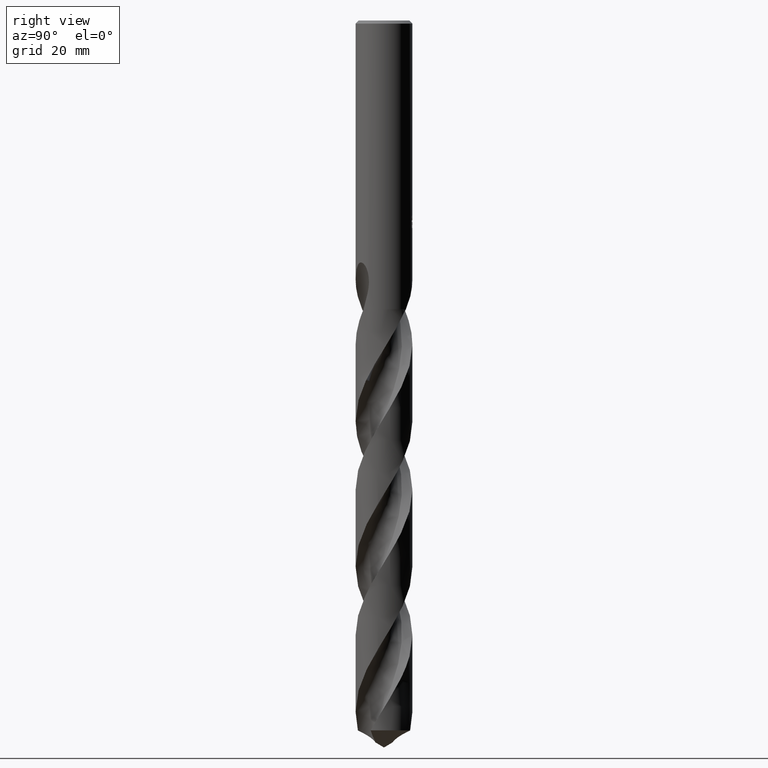
[diagram: clean part render]
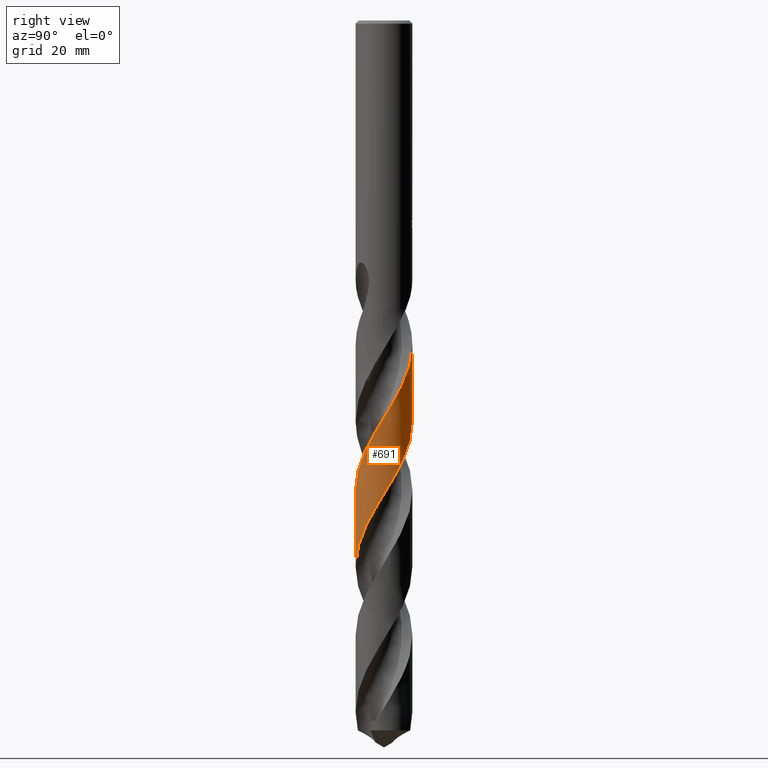
[diagram: same view with one face highlighted and labeled with its STEP entity id]
A machine part, right view. The second image highlights one B-rep face of the part: STEP entity #691.
In plain terms, the highlighted conical surface has half-angle 0 deg.
Its self-contained STEP definition (entity closure, byte-faithful):
#313=VERTEX_POINT('',#800);
#465=EDGE_CURVE('',#531,#313,#970,.T.);
#531=VERTEX_POINT('',#1042);
#543=EDGE_CURVE('',#647,#613,#1054,.T.);
#613=VERTEX_POINT('',#1129);
#625=EDGE_CURVE('',#647,#313,#1141,.T.);
#647=VERTEX_POINT('',#1163);
#691=ADVANCED_FACE('',(#1211),#1212,.T.);
#709=EDGE_CURVE('',#531,#613,#1232,.T.);
#800=CARTESIAN_POINT('',(7.98527233429181E-012,5.54992662607898,-78.2978399965336));
#970=LINE('',#4086,#4087);
#1042=CARTESIAN_POINT('',(3.26509822330006E-013,5.54990845892441,-63.3510636184465));
#1054=LINE('',#4652,#4653);
#1129=CARTESIAN_POINT('',(1.02480329572758E-013,-5.54994293024492,-91.7118681070603));
#1141=B_SPLINE_CURVE_WITH_KNOTS('',3,(#6389,#6390,#6391,#6392,#6393,#6394,#6395,#6396,#6397,#6398,#6399,#6400,#6401,#6402,#6403,#6404,#6405,#6406,#6407,#6408,#6409,#6410,#6411,#6412,#6413,#6414,#6415,#6416,#6417,#6418,#6419,#6420,#6421,#6422,#6423,#6424,#6425,#6426,#6427,#6428,#6429,#6430,#6431,#6432,#6433,#6434,#6435,#6436,#6437,#6438,#6439,#6440,#6441,#6442,#6443,#6444,#6445,#6446,#6447,#6448,#6449,#6450,#6451,#6452,#6453,#6454,#6455,#6456,#6457,#6458,#6459,#6460,#6461,#6462,#6463,#6464,#6465,#6466,#6467,#6468,#6469,#6470,#6471,#6472,#6473,#6474,#6475,#6476,#6477,#6478,#6479,#6480,#6481,#6482,#6483,#6484,#6485,#6486,#6487,#6488,#6489,#6490,#6491,#6492,#6493,#6494,#6495,#6496,#6497,#6498,#6499,#6500,#6501,#6502,#6503,#6504,#6505,#6506,#6507,#6508,#6509,#6510,#6511,#6512,#6513,#6514,#6515,#6516,#6517,#6518,#6519,#6520,#6521,#6522,#6523,#6524,#6525,#6526,#6527,#6528,#6529,#6530,#6531,#6532,#6533,#6534,#6535,#6536,#6537,#6538,#6539,#6540,#6541,#6542,#6543,#6544,#6545,#6546),.UNSPECIFIED.,.F.,.F.,(4,2,2,2,2,2,2,2,2,2,2,2,2,2,2,2,2,2,2,2,2,2,2,2,2,2,2,2,2,2,2,2,2,2,2,2,2,2,2,2,2,2,2,2,2,2,2,2,2,2,2,2,2,2,2,2,2,2,2,2,2,2,2,2,2,2,2,2,2,2,2,2,2,2,2,2,2,2,4),(0.0,1.46655868737656,3.41783290731923,5.26949046959095,5.74764628696772,7.95144570172864,9.54355369802347,11.1100185561849,12.6683297977426,14.2346658891406,15.793405792042,17.3595866141916,18.8742755995859,20.4399489714098,21.8692339213255,23.6874031627515,25.274196086025,27.2313110607265,27.9501409497025,29.3310392686889,30.0306007662757,31.6571620112534,33.4461055129922,34.5042760644231,36.0674687299325,37.4869222307285,39.0680116462478,39.7794021069182,40.4808167825242,41.8958329830743,42.6816166442228,44.2350344892799,45.6651994310543,47.1467608220412,48.5857734843821,49.9894940042185,51.4909340274777,52.2117138464143,53.4996941084221,55.4543609579214,56.4697179498838,57.932278954249,58.621262014019,59.3853137917778,60.7397031028553,61.5250086405784,63.0781470858341,64.5245192857018,65.9943866544358,67.5579108008403,69.0280307114055,70.5365061757088,71.9287085766405,73.5649313534265,74.2262717577189,75.2996262217071,76.7674338506758,77.455605137642,78.2118670554317,79.5873696145348,80.9319773874793,81.034744217811,82.6173234052096,84.0073804595535,84.2089754714259,87.1540691966913,87.287678610934,89.4047305821116,90.9724425704837,92.5239225540245,93.8689583896368,94.6101652206603,95.5988085917648,96.2995189479404,96.8108620683024,97.1636793984897,97.6055704357064,98.6709879472098,100.259175919108),.UNSPECIFIED.);
#1163=CARTESIAN_POINT('',(-1.29828638759846E-014,-5.54996109565772,-106.65721145902));
#1211=FACE_OUTER_BOUND('',#7995,.T.);
#1212=CONICAL_SURFACE('',#7996,5.54995,1.21545637188869E-006);
#1232=B_SPLINE_CURVE_WITH_KNOTS('',3,(#8030,#8031,#8032,#8033,#8034,#8035,#8036,#8037,#8038,#8039,#8040,#8041,#8042,#8043,#8044,#8045,#8046,#8047,#8048,#8049,#8050,#8051,#8052,#8053,#8054,#8055,#8056,#8057,#8058,#8059,#8060,#8061,#8062,#8063,#8064,#8065,#8066,#8067,#8068,#8069,#8070,#8071,#8072,#8073,#8074,#8075,#8076,#8077,#8078,#8079,#8080,#8081,#8082,#8083,#8084,#8085,#8086,#8087,#8088,#8089,#8090,#8091,#8092,#8093,#8094,#8095,#8096,#8097,#8098,#8099,#8100,#8101,#8102,#8103,#8104,#8105,#8106,#8107,#8108,#8109,#8110,#8111,#8112,#8113,#8114,#8115,#8116,#8117,#8118,#8119,#8120,#8121,#8122,#8123,#8124,#8125,#8126,#8127,#8128,#8129,#8130,#8131,#8132,#8133,#8134,#8135,#8136,#8137,#8138,#8139,#8140,#8141,#8142,#8143,#8144,#8145,#8146,#8147,#8148,#8149,#8150,#8151,#8152,#8153,#8154,#8155,#8156,#8157,#8158,#8159,#8160,#8161,#8162,#8163,#8164,#8165,#8166,#8167,#8168,#8169,#8170,#8171,#8172,#8173,#8174,#8175,#8176,#8177,#8178,#8179,#8180,#8181),.UNSPECIFIED.,.F.,.F.,(4,2,2,2,2,2,2,2,2,2,2,2,2,2,2,2,2,2,2,2,2,2,2,2,2,2,2,2,2,2,2,2,2,2,2,2,2,2,2,2,2,2,2,2,2,2,2,2,2,2,2,2,2,2,2,2,2,2,2,2,2,2,2,2,2,2,2,2,2,2,2,2,2,2,2,4),(0.0,0.310804689723535,0.413708914759205,0.462524665232662,0.497179689826137,0.572746394590917,1.21366839758523,1.39543087984104,1.49913271784174,1.61358112323344,1.79989630455332,2.16413089639086,2.72855537884365,3.06712363326307,3.59194006223824,4.38547983788959,5.1544747969328,6.16323675583631,6.64103513283072,8.87193999844643,10.4351457076785,12.0054893754131,13.4596326293848,15.3270830557485,16.7831916505017,18.7366398207587,19.325528829882,21.7380458015536,22.4138295781758,24.7549037396282,26.2259549372817,28.1734450641831,28.7982726862209,31.2411512368569,31.8963289447467,34.1609320071558,35.793498902235,37.7468183442879,38.3278624099232,40.7848142242462,41.427552585176,43.8166278533648,45.1989650045862,47.1452865496226,47.771600694453,50.1925006097275,50.8631473802622,53.1146865604938,54.1419020899004,56.6494135719897,57.2604966421588,59.64290567447,61.0293570938655,62.977255520373,63.5869839105672,65.9796522785373,66.669122121743,68.9468687563292,70.5470620358425,72.4957583459962,73.0946210391783,75.5595469728006,76.1969532170981,78.5353587724106,79.9982381375892,81.9451910641301,82.5549500951689,84.9649610297707,85.639551632239,87.9314464089321,89.0821031798557,91.1013641639327,92.6250984965075,93.7746721619667,95.5022485616983,97.2298336987217),.UNSPECIFIED.);
#4086=CARTESIAN_POINT('',(-6.79677326425997E-016,5.54995,-97.5284117821985));
#4087=VECTOR('',#8503,1.0);
#4652=CARTESIAN_POINT('',(6.79623480253304E-016,-5.54995,-97.5284117821985));
#4653=VECTOR('',#8581,1.0);
#6389=CARTESIAN_POINT('',(2.18190892951621,5.10311409075843,-138.665223564397));
#6390=CARTESIAN_POINT('',(1.94618635372523,5.20390007672846,-138.248985404182));
#6391=CARTESIAN_POINT('',(1.70380284410872,5.28821474393115,-137.834232006457));
#6392=CARTESIAN_POINT('',(1.12751252970514,5.44494676461815,-136.864116997864));
#6393=CARTESIAN_POINT('',(0.79130476142824,5.5038484370647,-136.308107589139));
#6394=CARTESIAN_POINT('',(0.129598243211646,5.55789119868548,-135.228628684634));
#6395=CARTESIAN_POINT('',(-0.194031830071094,5.55598458946377,-134.705801891367));
#6396=CARTESIAN_POINT('',(-0.598369128211378,5.51827311901813,-134.044150683669));
#6397=CARTESIAN_POINT('',(-0.681090967315803,5.50867455586978,-133.908237445287));
#6398=CARTESIAN_POINT('',(-1.14405845270469,5.44436158722863,-133.146602288955));
#6399=CARTESIAN_POINT('',(-1.51817058229382,5.35214659414686,-132.525703751407));
#6400=CARTESIAN_POINT('',(-2.14141494984061,5.12776120657281,-131.448603649751));
#6401=CARTESIAN_POINT('',(-2.39525384266939,5.01421641176461,-130.995444731727));
#6402=CARTESIAN_POINT('',(-2.88017058031493,4.75202539850199,-130.099183785098));
#6403=CARTESIAN_POINT('',(-3.11069064378841,4.60442107385557,-129.656452510474));
#6404=CARTESIAN_POINT('',(-3.54693073017167,4.27733379616394,-128.769792741288));
#6405=CARTESIAN_POINT('',(-3.75211245971791,4.09853415389738,-128.326297295317));
#6406=CARTESIAN_POINT('',(-4.13584925964094,3.7110420189222,-127.439670454345));
#6407=CARTESIAN_POINT('',(-4.31357303865453,3.50287551470505,-126.996981659824));
#6408=CARTESIAN_POINT('',(-4.63609871988204,3.06315247444927,-126.110257734466));
#6409=CARTESIAN_POINT('',(-4.78055090123767,2.83242866868245,-125.666644122063));
#6410=CARTESIAN_POINT('',(-5.03522746053901,2.35021268775503,-124.779959889544));
#6411=CARTESIAN_POINT('',(-5.14483322869769,2.09944966979377,-124.337326607388));
#6412=CARTESIAN_POINT('',(-5.32322558607001,1.59230175429177,-123.463201463102));
#6413=CARTESIAN_POINT('',(-5.39296121965349,1.33719699429047,-123.032157479422));
#6414=CARTESIAN_POINT('',(-5.49734428327799,0.810000700677633,-122.158173130703));
#6415=CARTESIAN_POINT('',(-5.5305485166486,0.538471964039422,-121.715725600712));
#6416=CARTESIAN_POINT('',(-5.55555563615371,0.016436630503861,-120.866124505689));
#6417=CARTESIAN_POINT('',(-5.55068149029343,-0.232979778070975,-120.45946681916));
#6418=CARTESIAN_POINT('',(-5.50159088163469,-0.797003016711333,-119.538267229211));
#6419=CARTESIAN_POINT('',(-5.44710344199682,-1.10988048979715,-119.025281124552));
#6420=CARTESIAN_POINT('',(-5.29555468595658,-1.68401258734366,-118.059671188007));
#6421=CARTESIAN_POINT('',(-5.2050586971808,-1.94581661411474,-117.608322761044));
#6422=CARTESIAN_POINT('',(-4.96000361755435,-2.51338935922523,-116.603307665221));
#6423=CARTESIAN_POINT('',(-4.79614066626358,-2.81343312378505,-116.051592927612));
#6424=CARTESIAN_POINT('',(-4.5361403496273,-3.20020122087029,-115.292353026761));
#6425=CARTESIAN_POINT('',(-4.46285115398641,-3.30164167377546,-115.088068919835));
#6426=CARTESIAN_POINT('',(-4.2386139511056,-3.59085655511561,-114.492092082536));
#6427=CARTESIAN_POINT('',(-4.07879015295984,-3.77144441820212,-114.101421360568));
#6428=CARTESIAN_POINT('',(-3.8207854628718,-4.02724269697341,-113.511410308575));
#6429=CARTESIAN_POINT('',(-3.73126255343179,-4.1103198044075,-113.313139016167));
#6430=CARTESIAN_POINT('',(-3.42490392620716,-4.37637821252096,-112.653180581099));
#6431=CARTESIAN_POINT('',(-3.19673682297169,-4.54572788869413,-112.190329276921));
#6432=CARTESIAN_POINT('',(-2.6921336628545,-4.8633397086117,-111.221290004934));
#6433=CARTESIAN_POINT('',(-2.41445715462676,-5.00696997571343,-110.716254562139));
#6434=CARTESIAN_POINT('',(-1.95607094209945,-5.19710658071429,-109.908092662058));
#6435=CARTESIAN_POINT('',(-1.78218363475013,-5.25928224396822,-109.60683913771));
#6436=CARTESIAN_POINT('',(-1.34415334478829,-5.39164262868626,-108.862418664372));
#6437=CARTESIAN_POINT('',(-1.0774029699528,-5.4512250553977,-108.420288138224));
#6438=CARTESIAN_POINT('',(-0.561938810155179,-5.52700494313188,-107.57357862838));
#6439=CARTESIAN_POINT('',(-0.3147321056359,-5.54655699320242,-107.169503283101));
#6440=CARTESIAN_POINT('',(0.208495899817631,-5.55289280124355,-106.317786844505));
#6441=CARTESIAN_POINT('',(0.484228286244485,-5.53568419252832,-105.870858053822));
#6442=CARTESIAN_POINT('',(0.880775343309873,-5.48103216420012,-105.220524893846));
#6443=CARTESIAN_POINT('',(1.00310752141023,-5.45996264065472,-105.018819922798));
#6444=CARTESIAN_POINT('',(1.24421891950097,-5.41007417180715,-104.617741745609));
#6445=CARTESIAN_POINT('',(1.36296989576053,-5.38138453781864,-104.418297825377));
#6446=CARTESIAN_POINT('',(1.71851259418785,-5.28295199881812,-103.817380728965));
#6447=CARTESIAN_POINT('',(1.95181064743351,-5.20130322521977,-103.416989251805));
#6448=CARTESIAN_POINT('',(2.30537317490545,-5.05035751977376,-102.792683636194));
#6449=CARTESIAN_POINT('',(2.42948372605126,-4.99183451244537,-102.569955164587));
#6450=CARTESIAN_POINT('',(2.79187749951655,-4.80425415095741,-101.906054157256));
#6451=CARTESIAN_POINT('',(3.02317492379879,-4.66218985514617,-101.463867313678));
#6452=CARTESIAN_POINT('',(3.44601008945151,-4.35768143865514,-100.617016505258));
#6453=CARTESIAN_POINT('',(3.63857112329905,-4.19822755124467,-100.212394677234));
#6454=CARTESIAN_POINT('',(4.00733685196394,-3.84839125954147,-99.38586199702));
#6455=CARTESIAN_POINT('',(4.18217258989494,-3.65763023317006,-98.9640298445685));
#6456=CARTESIAN_POINT('',(4.49951743793905,-3.25873792676906,-98.1349842411943));
#6457=CARTESIAN_POINT('',(4.64240013862431,-3.05175738640977,-97.7278986799066));
#6458=CARTESIAN_POINT('',(4.89605798144128,-2.62500433879366,-96.9212079861387));
#6459=CARTESIAN_POINT('',(5.00708762545577,-2.40641732344443,-96.5218319563095));
#6460=CARTESIAN_POINT('',(5.20608368888423,-1.94089508165861,-95.6975609775669));
#6461=CARTESIAN_POINT('',(5.29186664181791,-1.6931478343314,-95.2731792139547));
#6462=CARTESIAN_POINT('',(5.39251363824504,-1.31853412715266,-94.6431450700975));
#6463=CARTESIAN_POINT('',(5.42099127480738,-1.1960500019474,-94.4389124148447));
#6464=CARTESIAN_POINT('',(5.48866014032954,-0.852577563318762,-93.8690517776158));
#6465=CARTESIAN_POINT('',(5.51867097513028,-0.629823061869646,-93.5025454900616));
#6466=CARTESIAN_POINT('',(5.56003028902187,-0.06548335921149,-92.5824041846689));
#6467=CARTESIAN_POINT('',(5.55353213115095,0.276100692078814,-92.0310554030093));
#6468=CARTESIAN_POINT('',(5.49619252584372,0.790600497541936,-91.1880370255049));
#6469=CARTESIAN_POINT('',(5.46817998099854,0.965542083660717,-90.8990212012869));
#6470=CARTESIAN_POINT('',(5.37941799631367,1.38883983063827,-90.1953818725727));
#6471=CARTESIAN_POINT('',(5.30983044703363,1.63487905027109,-89.7815483547413));
#6472=CARTESIAN_POINT('',(5.1828156789784,1.98865342414391,-89.1708605996746));
#6473=CARTESIAN_POINT('',(5.13850512497341,2.10048311709103,-88.9753934194946));
#6474=CARTESIAN_POINT('',(5.03757730242147,2.33289314640022,-88.56267752118));
#6475=CARTESIAN_POINT('',(4.98017043431899,2.45305682056736,-88.3452720020989));
#6476=CARTESIAN_POINT('',(4.80896743722313,2.78055117928556,-87.7434355471059));
#6477=CARTESIAN_POINT('',(4.68615011360724,2.98292624066882,-87.3598745406618));
#6478=CARTESIAN_POINT('',(4.47205423017372,3.28958542425165,-86.7525175266041));
#6479=CARTESIAN_POINT('',(4.38937931563151,3.39910852883031,-86.5297851305537));
#6480=CARTESIAN_POINT('',(4.13154823631108,3.71558950999745,-85.8656904814446));
#6481=CARTESIAN_POINT('',(3.94509430026249,3.91301340429031,-85.4233183033994));
#6482=CARTESIAN_POINT('',(3.55823971558718,4.26668283069688,-84.5714376146287));
#6483=CARTESIAN_POINT('',(3.36030050866725,4.42424811506617,-84.1620171189039));
#6484=CARTESIAN_POINT('',(2.94106548407988,4.71357656034926,-83.3337070389471));
#6485=CARTESIAN_POINT('',(2.72006343391576,4.84446965781431,-82.9149490615049));
#6486=CARTESIAN_POINT('',(2.24669052984854,5.08219094319401,-82.0533634116917));
#6487=CARTESIAN_POINT('',(1.99394706477024,5.18657051833218,-81.6110515983333));
#6488=CARTESIAN_POINT('',(1.4905199450913,5.35219856043857,-80.7496212883481));
#6489=CARTESIAN_POINT('',(1.2415014535025,5.41536941590022,-80.3309478200746));
#6490=CARTESIAN_POINT('',(0.729946737384788,5.50801220172884,-79.4851576236523));
#6491=CARTESIAN_POINT('',(0.467766516781683,5.53645442031278,-79.0584353440313));
#6492=CARTESIAN_POINT('',(-0.0385973249951334,5.55511838972382,-78.2351225557465));
#6493=CARTESIAN_POINT('',(-0.281711158793415,5.54807575023344,-77.8389751778885));
#6494=CARTESIAN_POINT('',(-0.80695634048804,5.49834016632633,-76.9796500667253));
#6495=CARTESIAN_POINT('',(-1.08848934870472,5.44962446498485,-76.5174415278625));
#6496=CARTESIAN_POINT('',(-1.47716993467856,5.35097608345579,-75.8660527134921));
#6497=CARTESIAN_POINT('',(-1.58805192711044,5.31911875280648,-75.678640928792));
#6498=CARTESIAN_POINT('',(-1.87586499432721,5.22663976201877,-75.1865510939568));
#6499=CARTESIAN_POINT('',(-2.05091570732989,5.16046711916918,-74.8812539715424));
#6500=CARTESIAN_POINT('',(-2.45698294463681,4.98300959948306,-74.1602519979798));
#6501=CARTESIAN_POINT('',(-2.68426636746882,4.86435890338164,-73.7452879624638));
#6502=CARTESIAN_POINT('',(-3.00503861160988,4.66752498160312,-73.1338627652872));
#6503=CARTESIAN_POINT('',(-3.10526623653011,4.60144680811371,-72.9387927774127));
#6504=CARTESIAN_POINT('',(-3.3107956100984,4.45618715966432,-72.5288747704078));
#6505=CARTESIAN_POINT('',(-3.41556582442615,4.3764001902542,-72.3138712297803));
#6506=CARTESIAN_POINT('',(-3.70287533434552,4.14098439348366,-71.7088561754782));
#6507=CARTESIAN_POINT('',(-3.87841190581326,3.9770839102962,-71.3197378630821));
#6508=CARTESIAN_POINT('',(-4.20379223505501,3.63109262261282,-70.548436274987));
#6509=CARTESIAN_POINT('',(-4.35334718245448,3.4503177099483,-70.1680982162977));
#6510=CARTESIAN_POINT('',(-4.5013367586185,3.24651467251423,-69.7571602435785));
#6511=CARTESIAN_POINT('',(-4.51178694352438,3.23197629617616,-69.7279484431563));
#6512=CARTESIAN_POINT('',(-4.68245623351313,2.99208845437821,-69.2477960095823));
#6513=CARTESIAN_POINT('',(-4.82589318522265,2.75485037989409,-68.7988609851044));
#6514=CARTESIAN_POINT('',(-5.06121129701517,2.29019764781088,-67.9530625748242));
#6515=CARTESIAN_POINT('',(-5.15663548674658,2.06629006887,-67.5586191346945));
#6516=CARTESIAN_POINT('',(-5.24863202316913,1.80406078988519,-67.1051494774848));
#6517=CARTESIAN_POINT('',(-5.25995977902081,1.77076218515156,-67.0477143380681));
#6518=CARTESIAN_POINT('',(-5.4321416665692,1.24835474156015,-66.1503199980146));
#6519=CARTESIAN_POINT('',(-5.52449955937384,0.739379268159501,-65.3219452936437));
#6520=CARTESIAN_POINT('',(-5.54630297419032,0.201414826184306,-64.4446745317608));
#6521=CARTESIAN_POINT('',(-5.54710109468617,0.178081793202497,-64.4066131572951));
#6522=CARTESIAN_POINT('',(-5.55806977610111,-0.215211171386872,-63.7654618416549));
#6523=CARTESIAN_POINT('',(-5.53136529260695,-0.585192586654221,-63.167124342706));
#6524=CARTESIAN_POINT('',(-5.42112089125504,-1.21984654416238,-62.1185207854202));
#6525=CARTESIAN_POINT('',(-5.35466341618294,-1.48443721723668,-61.6696103532869));
#6526=CARTESIAN_POINT('',(-5.18403467868201,-2.00005291819128,-60.7868579985272));
#6527=CARTESIAN_POINT('',(-5.0831054404092,-2.24377654145506,-60.3710867461823));
#6528=CARTESIAN_POINT('',(-4.86053725563329,-2.68886790108848,-59.5732741583446));
#6529=CARTESIAN_POINT('',(-4.76425826795565,-2.84971222968035,-59.2674160925322));
#6530=CARTESIAN_POINT('',(-4.65447946175689,-3.02367097097183,-58.9252030435918));
#6531=CARTESIAN_POINT('',(-4.61501578773773,-3.08349824968148,-58.8029977555939));
#6532=CARTESIAN_POINT('',(-4.52245779634429,-3.21831149398208,-58.5151689294965));
#6533=CARTESIAN_POINT('',(-4.48843310646653,-3.26504977379341,-58.4054113201456));
#6534=CARTESIAN_POINT('',(-4.41491490737921,-3.36341120349777,-58.1830695426833));
#6535=CARTESIAN_POINT('',(-4.38336884637438,-3.40445006496141,-58.0914900348947));
#6536=CARTESIAN_POINT('',(-4.32664336636844,-3.47606870362098,-57.933838518209));
#6537=CARTESIAN_POINT('',(-4.3020882647152,-3.50642489320447,-57.8676763311156));
#6538=CARTESIAN_POINT('',(-4.25942595926778,-3.55801150955256,-57.7563463218869));
#6539=CARTESIAN_POINT('',(-4.23926320856845,-3.58204898776492,-57.7047346978355));
#6540=CARTESIAN_POINT('',(-4.19252300839709,-3.63672334484506,-57.5897102464672));
#6541=CARTESIAN_POINT('',(-4.16565619781283,-3.66748605059359,-57.5263327718958));
#6542=CARTESIAN_POINT('',(-4.07082866449812,-3.77357552349271,-57.3119543786022));
#6543=CARTESIAN_POINT('',(-3.99868876184072,-3.85019541915639,-57.1642020349161));
#6544=CARTESIAN_POINT('',(-3.80465332046217,-4.04387586400089,-56.8037035283301));
#6545=CARTESIAN_POINT('',(-3.67702065820945,-4.16102793861461,-56.5970858706923));
#6546=CARTESIAN_POINT('',(-3.53650753127202,-4.27720756554004,-56.3966));
#7995=EDGE_LOOP('',(#8737,#8738,#8739,#8740));
#7996=AXIS2_PLACEMENT_3D('',#8741,#8742,#8743);
#8030=CARTESIAN_POINT('',(-3.85760853507282,3.99001835429237,-56.3966));
#8031=CARTESIAN_POINT('',(-3.82052641861358,4.02587004276625,-56.4864490788962));
#8032=CARTESIAN_POINT('',(-3.78279775274604,4.06134925021088,-56.5763736884877));
#8033=CARTESIAN_POINT('',(-3.73151755372547,4.10821974530627,-56.6959571112128));
#8034=CARTESIAN_POINT('',(-3.71868514797773,4.11983939581686,-56.7256705950065));
#8035=CARTESIAN_POINT('',(-3.69963199362385,4.13692954214666,-56.7694599084626));
#8036=CARTESIAN_POINT('',(-3.69348296701984,4.14242042843956,-56.7835422959819));
#8037=CARTESIAN_POINT('',(-3.6829341218933,4.15179794973129,-56.8076143206384));
#8038=CARTESIAN_POINT('',(-3.67854482249359,4.15568745262306,-56.817605036366));
#8039=CARTESIAN_POINT('',(-3.66455196493598,4.16804737495866,-56.8493728895142));
#8040=CARTESIAN_POINT('',(-3.65491329993486,4.17650216956621,-56.8711330967785));
#8041=CARTESIAN_POINT('',(-3.56304070268217,4.25652658614077,-57.0773593731848));
#8042=CARTESIAN_POINT('',(-3.47898108004977,4.32558877901504,-57.2569952738162));
#8043=CARTESIAN_POINT('',(-3.36478358933791,4.41368912448929,-57.4902146536561));
#8044=CARTESIAN_POINT('',(-3.33931508802795,4.43299112190098,-57.5415946731731));
#8045=CARTESIAN_POINT('',(-3.29888037377744,4.46308527529445,-57.6222786440313));
#8046=CARTESIAN_POINT('',(-3.28411633826558,4.47396070097426,-57.6515569641086));
#8047=CARTESIAN_POINT('',(-3.25288853675142,4.49672492407979,-57.7131333897436));
#8048=CARTESIAN_POINT('',(-3.23642945463308,4.50858489037567,-57.7453805827102));
#8049=CARTESIAN_POINT('',(-3.19335202120939,4.53927149960786,-57.8294009175801));
#8050=CARTESIAN_POINT('',(-3.16648242011195,4.55805609633589,-57.8814044810759));
#8051=CARTESIAN_POINT('',(-3.08654500589464,4.61289118159386,-58.0351170336292));
#8052=CARTESIAN_POINT('',(-3.03309927751385,4.6482056602833,-58.1366037861948));
#8053=CARTESIAN_POINT('',(-2.89546680378603,4.73577014983546,-58.3960491316794));
#8054=CARTESIAN_POINT('',(-2.81223701303703,4.78564078619147,-58.5516976313638));
#8055=CARTESIAN_POINT('',(-2.67559909572232,4.86272062868386,-58.806090448229));
#8056=CARTESIAN_POINT('',(-2.6240029075077,4.89075304307436,-58.9017190142595));
#8057=CARTESIAN_POINT('',(-2.49160802991293,4.95999645150826,-59.1454268771733));
#8058=CARTESIAN_POINT('',(-2.41013969356468,5.00008915499757,-59.2937857260209));
#8059=CARTESIAN_POINT('',(-2.20319132565263,5.09570515976329,-59.6663999625162));
#8060=CARTESIAN_POINT('',(-2.07638526484018,5.14868719256839,-59.8908750739604));
#8061=CARTESIAN_POINT('',(-1.82277561711181,5.24372943225021,-60.3322038163978));
#8062=CARTESIAN_POINT('',(-1.6963586871258,5.28598525802502,-60.5484373813884));
#8063=CARTESIAN_POINT('',(-1.40027454045217,5.37320765550788,-61.0494016286606));
#8064=CARTESIAN_POINT('',(-1.23015326837449,5.41468011840035,-61.3331361459002));
#8065=CARTESIAN_POINT('',(-0.977179904849629,5.46383038070461,-61.7523110661549));
#8066=CARTESIAN_POINT('',(-0.89557020970587,5.47779731650752,-61.8871373351474));
#8067=CARTESIAN_POINT('',(-0.431596357516119,5.546569384335,-62.6510367263395));
#8068=CARTESIAN_POINT('',(-0.0443422530584924,5.56319190863213,-63.2781403397652));
#8069=CARTESIAN_POINT('',(0.612183896577505,5.52269624246831,-64.3477335469271));
#8070=CARTESIAN_POINT('',(0.881025762449132,5.48622534027617,-64.787830144722));
#8071=CARTESIAN_POINT('',(1.41230352839227,5.37410058850686,-65.6713734575256));
#8072=CARTESIAN_POINT('',(1.6741290127986,5.29839026684017,-66.1135335218256));
#8073=CARTESIAN_POINT('',(2.1657978213677,5.1160936609179,-66.9661442012583));
#8074=CARTESIAN_POINT('',(2.39586198022747,5.01247093162378,-67.3754838005986));
#8075=CARTESIAN_POINT('',(2.90332738550046,4.74098478783846,-68.3121047795444));
#8076=CARTESIAN_POINT('',(3.1748347829346,4.56364079101806,-68.8377582198417));
#8077=CARTESIAN_POINT('',(3.62790355752194,4.20756747840628,-69.7747094658705));
#8078=CARTESIAN_POINT('',(3.8154699573719,4.03824619964293,-70.1847113946974));
#8079=CARTESIAN_POINT('',(4.22605627971657,3.61339502786057,-71.1461303631646));
#8080=CARTESIAN_POINT('',(4.4386041011944,3.34889769077572,-71.6957207445853));
#8081=CARTESIAN_POINT('',(4.6821784340638,2.98148241721958,-72.412431615292));
#8082=CARTESIAN_POINT('',(4.73622501817817,2.89485735377816,-72.5783789221359));
#8083=CARTESIAN_POINT('',(4.99932024562449,2.44607156289699,-73.4246944569789));
#8084=CARTESIAN_POINT('',(5.16940842263126,2.06248832700494,-74.1033416952856));
#8085=CARTESIAN_POINT('',(5.32991387896586,1.55157696514117,-74.9740712857863));
#8086=CARTESIAN_POINT('',(5.36147967992573,1.43871593210092,-75.1644846483322));
#8087=CARTESIAN_POINT('',(5.48633687371467,0.930843984918472,-76.0152133189909));
#8088=CARTESIAN_POINT('',(5.53972544274415,0.527198856606738,-76.6740151672021));
#8089=CARTESIAN_POINT('',(5.55417602946231,-0.133753673498633,-77.748940994622));
#8090=CARTESIAN_POINT('',(5.54215800429911,-0.388809106281651,-78.1631963430937));
#8091=CARTESIAN_POINT('',(5.47361517623173,-0.977324444124675,-79.1273871985937));
#8092=CARTESIAN_POINT('',(5.4040504830096,-1.30844175906029,-79.6755019551106));
#8093=CARTESIAN_POINT('',(5.27292526437777,-1.73485325526239,-80.4008383487226));
#8094=CARTESIAN_POINT('',(5.23805494261434,-1.83745246542084,-80.5769384185547));
#8095=CARTESIAN_POINT('',(5.05224460485108,-2.33579255649819,-81.4421381157926));
#8096=CARTESIAN_POINT('',(4.85929570602769,-2.71450155511609,-82.1293990165018));
#8097=CARTESIAN_POINT('',(4.56228315927483,-3.16231490840508,-83.0030735593676));
#8098=CARTESIAN_POINT('',(4.49658977780222,-3.25504813524676,-83.1877264920517));
#8099=CARTESIAN_POINT('',(4.1913846664419,-3.65899621344004,-84.0112734425997));
#8100=CARTESIAN_POINT('',(3.92202628603568,-3.94636295953231,-84.6488885876509));
#8101=CARTESIAN_POINT('',(3.41010873411459,-4.38783943500174,-85.7480785656892));
#8102=CARTESIAN_POINT('',(3.18187730834482,-4.55604590771847,-86.2077903054805));
#8103=CARTESIAN_POINT('',(2.6547371681002,-4.88557577368601,-87.2194067206792));
#8104=CARTESIAN_POINT('',(2.35167440890966,-5.03847783354398,-87.7692014715249));
#8105=CARTESIAN_POINT('',(1.9426976319045,-5.19979890125164,-88.4839943794198));
#8106=CARTESIAN_POINT('',(1.84796655810107,-5.23421402257827,-88.6478131855478));
#8107=CARTESIAN_POINT('',(1.34811520687927,-5.40054966845187,-89.5048420002225));
#8108=CARTESIAN_POINT('',(0.929597175340316,-5.48811306519513,-90.1961770134783));
#8109=CARTESIAN_POINT('',(0.394070997233518,-5.53705696023015,-91.0705116503871));
#8110=CARTESIAN_POINT('',(0.282769495561354,-5.54385495644804,-91.2517092605405));
#8111=CARTESIAN_POINT('',(-0.242796954334328,-5.56009022052545,-92.1070615924291));
#8112=CARTESIAN_POINT('',(-0.657185923839567,-5.52646477769886,-92.7795544767697));
#8113=CARTESIAN_POINT('',(-1.29940961181704,-5.40101423819887,-93.8434836884016));
#8114=CARTESIAN_POINT('',(-1.53150195482041,-5.33983670380516,-94.2330231819121));
#8115=CARTESIAN_POINT('',(-2.07893551547557,-5.15692148403625,-95.1722916868052));
#8116=CARTESIAN_POINT('',(-2.3887114413893,-5.02095855611669,-95.7203310319914));
#8117=CARTESIAN_POINT('',(-2.77940850062455,-4.80506279344368,-96.4460888744285));
#8118=CARTESIAN_POINT('',(-2.87293930109319,-4.74973202877198,-96.6226864781938));
#8119=CARTESIAN_POINT('',(-3.31975288983368,-4.46738306467497,-97.4824996262616));
#8120=CARTESIAN_POINT('',(-3.64822255067142,-4.20343987565404,-98.1639504069258));
#8121=CARTESIAN_POINT('',(-4.02568321667953,-3.82222232681398,-99.0361943716331));
#8122=CARTESIAN_POINT('',(-4.10492877028436,-3.73698588671739,-99.2252897376378));
#8123=CARTESIAN_POINT('',(-4.43826416944977,-3.35504927815763,-100.049886944951));
#8124=CARTESIAN_POINT('',(-4.66336909616986,-3.03440939208859,-100.684138872738));
#8125=CARTESIAN_POINT('',(-4.9394314991798,-2.53688641064053,-101.609328467364));
#8126=CARTESIAN_POINT('',(-5.01834360996251,-2.37697025560261,-101.898843352726));
#8127=CARTESIAN_POINT('',(-5.26291827068713,-1.81464579180988,-102.896428182601));
#8128=CARTESIAN_POINT('',(-5.38896511634437,-1.39660097675845,-103.60214119207));
#8129=CARTESIAN_POINT('',(-5.48337912929031,-0.863621084766293,-104.482180016904));
#8130=CARTESIAN_POINT('',(-5.49887776150652,-0.758700115635384,-104.654539467535));
#8131=CARTESIAN_POINT('',(-5.56002713224977,-0.242929961291671,-105.49945447659));
#8132=CARTESIAN_POINT('',(-5.56269304522082,0.171819069596214,-106.170373896789));
#8133=CARTESIAN_POINT('',(-5.49396535980877,0.822397660126371,-107.234045308572));
#8134=CARTESIAN_POINT('',(-5.45315007909731,1.05975661185609,-107.624921940069));
#8135=CARTESIAN_POINT('',(-5.31832337348626,1.62225687328984,-108.566195017344));
#8136=CARTESIAN_POINT('',(-5.20968664500595,1.9430897688575,-109.114882027106));
#8137=CARTESIAN_POINT('',(-5.0295281265658,2.34886358749587,-109.836713292894));
#8138=CARTESIAN_POINT('',(-4.98383087620992,2.44432762815914,-110.008713934249));
#8139=CARTESIAN_POINT('',(-4.74554270806475,2.90763328069874,-110.856251035597));
#8140=CARTESIAN_POINT('',(-4.51475825565024,3.25447807447595,-111.530116244937));
#8141=CARTESIAN_POINT('',(-4.17035008845347,3.6639667617549,-112.400084836267));
#8142=CARTESIAN_POINT('',(-4.09037719639496,3.7530363176619,-112.594566294266));
#8143=CARTESIAN_POINT('',(-3.73411781516466,4.12489991898531,-113.432224896181));
#8144=CARTESIAN_POINT('',(-3.43085992957008,4.38038195825303,-114.074072499051));
#8145=CARTESIAN_POINT('',(-2.8726608755444,4.75680388863184,-115.168798572749));
#8146=CARTESIAN_POINT('',(-2.63105301445699,4.89457279147312,-115.619806939003));
#8147=CARTESIAN_POINT('',(-2.07477424488511,5.158666977546,-116.62187920808));
#8148=CARTESIAN_POINT('',(-1.7566084057258,5.27551093326018,-117.170897580535));
#8149=CARTESIAN_POINT('',(-1.32921060698183,5.38945549151449,-117.890050469299));
#8150=CARTESIAN_POINT('',(-1.22803208664887,5.41340584149823,-118.059033014168));
#8151=CARTESIAN_POINT('',(-0.707335822229506,5.52131685425073,-118.924099414497));
#8152=CARTESIAN_POINT('',(-0.279660996490725,5.55942738614244,-119.61826890606));
#8153=CARTESIAN_POINT('',(0.258847311051153,5.54504313084238,-120.49412565051));
#8154=CARTESIAN_POINT('',(0.369352517279755,5.53877952382165,-120.673979815553));
#8155=CARTESIAN_POINT('',(0.883987106528889,5.4941429464863,-121.514280335152));
#8156=CARTESIAN_POINT('',(1.28342604248863,5.41479452053648,-122.173219477778));
#8157=CARTESIAN_POINT('',(1.91293381825846,5.21608218782883,-123.24654143652));
#8158=CARTESIAN_POINT('',(2.14958440189859,5.1230895075908,-123.659072149472));
#8159=CARTESIAN_POINT('',(2.68426068004009,4.86941850089083,-124.622100503843));
#8160=CARTESIAN_POINT('',(2.97578349603146,4.69695186908197,-125.170776051891));
#8161=CARTESIAN_POINT('',(3.3357155478328,4.43695202119633,-125.89268363538));
#8162=CARTESIAN_POINT('',(3.41974478041065,4.37251431959738,-126.06477363552));
#8163=CARTESIAN_POINT('',(3.82646206917405,4.04172995900238,-126.917609995746));
#8164=CARTESIAN_POINT('',(4.12025180363402,3.74180251144628,-127.59662391701));
#8165=CARTESIAN_POINT('',(4.44958309427464,3.31923192095706,-128.467686983133));
#8166=CARTESIAN_POINT('',(4.51864892809057,3.22457703848715,-128.658064058577));
#8167=CARTESIAN_POINT('',(4.8089396181963,2.79907930915256,-129.495907857711));
#8168=CARTESIAN_POINT('',(4.99725866997915,2.44709410013471,-130.141999908898));
#8169=CARTESIAN_POINT('',(5.2211398277078,1.8926286010868,-131.114262487548));
#8170=CARTESIAN_POINT('',(5.28588502604531,1.7034465370921,-131.438827245645));
#8171=CARTESIAN_POINT('',(5.4357404940953,1.17389973842933,-132.334305778849));
#8172=CARTESIAN_POINT('',(5.49904979122372,0.828191853540338,-132.90375419639));
#8173=CARTESIAN_POINT('',(5.55213855077745,0.215053659938444,-133.904471363713));
#8174=CARTESIAN_POINT('',(5.5560729926234,-0.0498763077033384,-134.334225768783));
#8175=CARTESIAN_POINT('',(5.52981207402676,-0.513292705946353,-135.089439709306));
#8176=CARTESIAN_POINT('',(5.50777525632577,-0.71185572575816,-135.41398366796));
#8177=CARTESIAN_POINT('',(5.4259399364995,-1.20485971510169,-136.226665973756));
#8178=CARTESIAN_POINT('',(5.35289513547605,-1.49630234810164,-136.713304908526));
#8179=CARTESIAN_POINT('',(5.16049742060711,-2.06438550202185,-137.689546751357));
#8180=CARTESIAN_POINT('',(5.04140424663827,-2.34025084252839,-138.17718252444));
#8181=CARTESIAN_POINT('',(4.90055386764511,-2.6052009116973,-138.665223564397));
#8503=DIRECTION('',(-1.48845559580842E-022,1.21545637188839E-006,-0.999999999999261));
#8581=DIRECTION('',(-1.48845559580842E-022,1.21545637188839E-006,0.999999999999261));
#8737=ORIENTED_EDGE('',*,*,#465,.F.);
#8738=ORIENTED_EDGE('',*,*,#709,.T.);
#8739=ORIENTED_EDGE('',*,*,#543,.F.);
#8740=ORIENTED_EDGE('',*,*,#625,.T.);
#8741=CARTESIAN_POINT('',(0.0,0.0,-97.5284117821985));
#8742=DIRECTION('',(0.0,-0.0,-1.0));
#8743=DIRECTION('',(0.0,1.0,0.0));